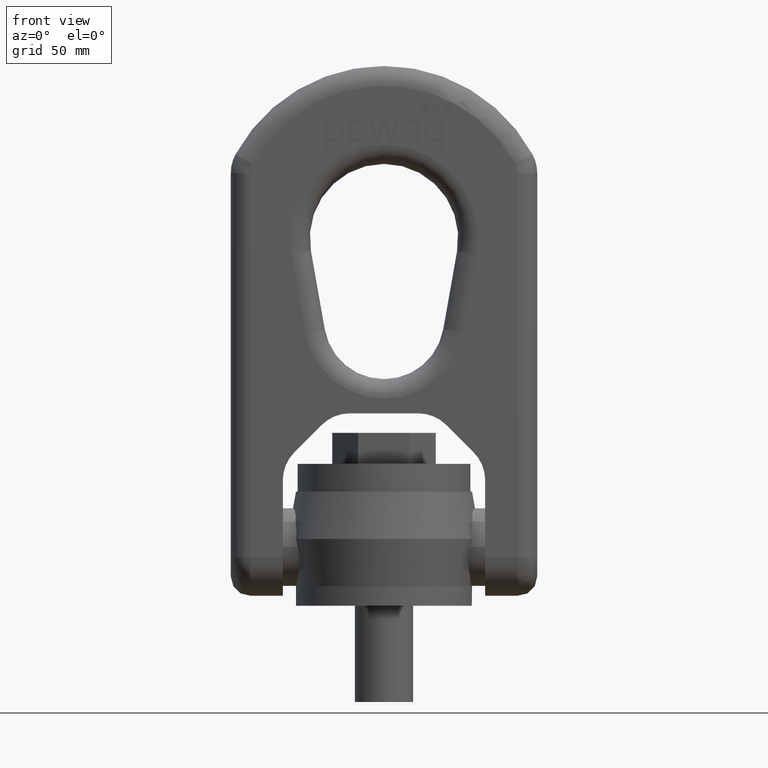
[diagram: clean part render]
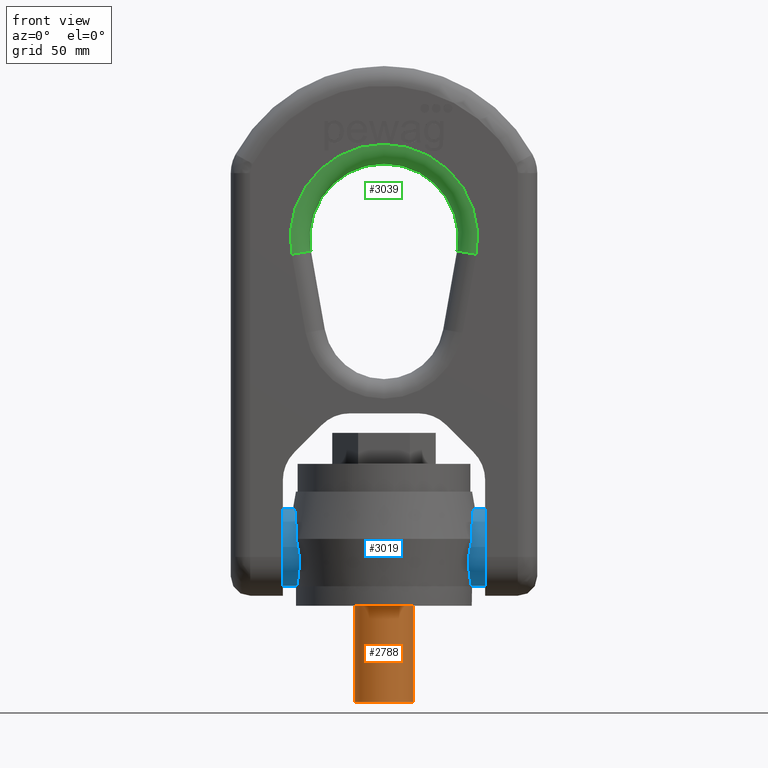
[diagram: same view with three faces highlighted in distinct colors, each labeled with its STEP entity id]
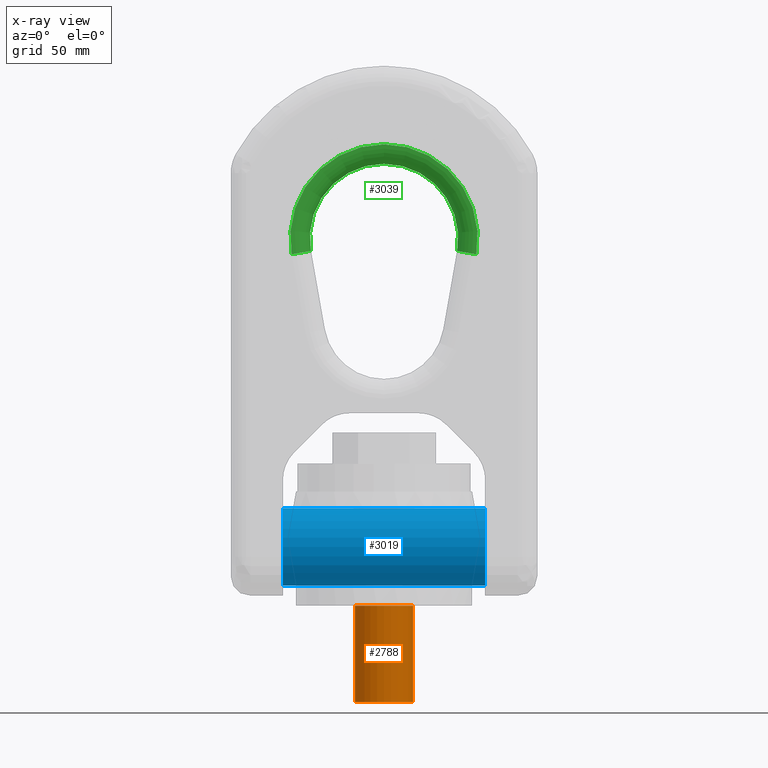
[diagram: x-ray of the same camera — body ghosted, the three highlighted faces saturated]
A machine part, front view with three faces highlighted in distinct colors.
The next image is the same camera in x-ray (body ghosted, the three faces saturated) — at least one of them is partly hidden behind the body in this view.
Their STEP definitions:

[orange] entity #2788 — the highlighted cylindrical surface (bore or boss wall) has radius 18 mm, axis along (0, 0, 1).
#2788=ADVANCED_FACE('',(#3073,#3074),#3041,.T.);
#3041=CYLINDRICAL_SURFACE('',#5834,18.);
#3073=FACE_BOUND('',#3141,.T.);
#3074=FACE_BOUND('',#3142,.T.);
#3141=EDGE_LOOP('',(#3437));
#3142=EDGE_LOOP('',(#3438));
#3437=ORIENTED_EDGE('',*,*,#5120,.F.);
#3438=ORIENTED_EDGE('',*,*,#5119,.T.);
#4699=VERTEX_POINT('',#6943);
#4700=VERTEX_POINT('',#6946);
#5119=EDGE_CURVE('',#4699,#4699,#5751,.T.);
#5120=EDGE_CURVE('',#4700,#4700,#5752,.T.);
#5751=CIRCLE('',#5831,18.);
#5752=CIRCLE('',#5833,18.);
#5831=AXIS2_PLACEMENT_3D('',#6942,#6072,#6073);
#5833=AXIS2_PLACEMENT_3D('',#6945,#6076,#6077);
#5834=AXIS2_PLACEMENT_3D('',#6947,#6078,#6079);
#6072=DIRECTION('',(0.,0.,-1.));
#6073=DIRECTION('',(-6.12323399573677E-17,1.,0.));
#6076=DIRECTION('',(0.,0.,-1.));
#6077=DIRECTION('',(-6.12323399573677E-17,1.,0.));
#6078=DIRECTION('',(0.,0.,1.));
#6079=DIRECTION('',(1.,0.,0.));
#6942=CARTESIAN_POINT('',(0.,0.,0.));
#6943=CARTESIAN_POINT('',(-1.10218211923262E-15,18.,0.));
#6945=CARTESIAN_POINT('',(0.,0.,-59.));
#6946=CARTESIAN_POINT('',(-1.10218211923262E-15,18.,-59.));
#6947=CARTESIAN_POINT('',(0.,0.,-59.));

[blue] entity #3019 — the highlighted cylindrical surface (bore or boss wall) has radius 24 mm, axis along (-1, 0, 0).
#3019=ADVANCED_FACE('',(#3135,#3136),#3060,.T.);
#3060=CYLINDRICAL_SURFACE('',#6029,24.);
#3135=FACE_BOUND('',#3411,.T.);
#3136=FACE_BOUND('',#3412,.T.);
#3411=EDGE_LOOP('',(#4613,#4614));
#3412=EDGE_LOOP('',(#4615,#4616));
#4613=ORIENTED_EDGE('',*,*,#5162,.F.);
#4614=ORIENTED_EDGE('',*,*,#5716,.F.);
#4615=ORIENTED_EDGE('',*,*,#5166,.F.);
#4616=ORIENTED_EDGE('',*,*,#5717,.F.);
#4729=VERTEX_POINT('',#7037);
#4731=VERTEX_POINT('',#7040);
#4733=VERTEX_POINT('',#7046);
#4735=VERTEX_POINT('',#7049);
#5162=EDGE_CURVE('',#4729,#4731,#5757,.T.);
#5166=EDGE_CURVE('',#4733,#4735,#5758,.T.);
#5716=EDGE_CURVE('',#4731,#4729,#5801,.T.);
#5717=EDGE_CURVE('',#4735,#4733,#5802,.T.);
#5757=CIRCLE('',#5859,24.);
#5758=CIRCLE('',#5861,24.);
#5801=CIRCLE('',#6012,24.);
#5802=CIRCLE('',#6014,24.);
#5859=AXIS2_PLACEMENT_3D('',#7039,#6165,#6166);
#5861=AXIS2_PLACEMENT_3D('',#7048,#6172,#6173);
#6012=AXIS2_PLACEMENT_3D('',#9690,#6825,#6826);
#6014=AXIS2_PLACEMENT_3D('',#9692,#6829,#6830);
#6029=AXIS2_PLACEMENT_3D('',#9714,#6866,#6867);
#6165=DIRECTION('',(-1.,0.,2.39272203583008E-16));
#6166=DIRECTION('',(-2.89120579329468E-16,0.,-1.));
#6172=DIRECTION('',(1.,0.,2.39272203583008E-16));
#6173=DIRECTION('',(-2.89120579329468E-16,0.,1.));
#6825=DIRECTION('',(-1.,0.,2.39272203583008E-16));
#6826=DIRECTION('',(-2.89120579329468E-16,0.,-1.));
#6829=DIRECTION('',(1.,0.,2.39272203583008E-16));
#6830=DIRECTION('',(-2.89120579329468E-16,0.,1.));
#6866=DIRECTION('',(-1.,0.,0.));
#6867=DIRECTION('',(0.,0.,1.));
#7037=CARTESIAN_POINT('',(-62.04,-24.,36.));
#7039=CARTESIAN_POINT('',(-62.04,0.,36.));
#7040=CARTESIAN_POINT('',(-62.04,24.0000000000001,36.));
#7046=CARTESIAN_POINT('',(62.04,-24.,36.));
#7048=CARTESIAN_POINT('',(62.04,0.,36.));
#7049=CARTESIAN_POINT('',(62.04,23.9999999999999,36.));
#9690=CARTESIAN_POINT('',(-62.04,0.,36.));
#9692=CARTESIAN_POINT('',(62.04,0.,36.));
#9714=CARTESIAN_POINT('',(94.,0.,36.));

[green] entity #3039 — the highlighted toroidal blend (fillet) surface has major radius 57.5 mm and minor (blend) radius 12 mm.
#206=TOROIDAL_SURFACE('',#6063,57.5,12.);
#2664=FACE_OUTER_BOUND('',#3432,.T.);
#3039=ADVANCED_FACE('',(#2664),#206,.T.);
#3432=EDGE_LOOP('',(#4693,#4694,#4695,#4696));
#4693=ORIENTED_EDGE('',*,*,#5747,.T.);
#4694=ORIENTED_EDGE('',*,*,#5356,.F.);
#4695=ORIENTED_EDGE('',*,*,#5748,.T.);
#4696=ORIENTED_EDGE('',*,*,#5177,.F.);
#4744=VERTEX_POINT('',#7071);
#4745=VERTEX_POINT('',#7073);
#4914=VERTEX_POINT('',#7727);
#4916=VERTEX_POINT('',#7733);
#5177=EDGE_CURVE('',#4744,#4745,#5763,.T.);
#5356=EDGE_CURVE('',#4916,#4914,#5788,.T.);
#5747=EDGE_CURVE('',#4744,#4914,#5825,.T.);
#5748=EDGE_CURVE('',#4916,#4745,#5826,.T.);
#5763=CIRCLE('',#5869,57.5);
#5788=CIRCLE('',#5897,45.5);
#5825=CIRCLE('',#6059,12.);
#5826=CIRCLE('',#6061,12.);
#5869=AXIS2_PLACEMENT_3D('',#7072,#6194,#6195);
#5897=AXIS2_PLACEMENT_3D('',#7734,#6336,#6337);
#6059=AXIS2_PLACEMENT_3D('',#9840,#6926,#6927);
#6061=AXIS2_PLACEMENT_3D('',#9842,#6930,#6931);
#6063=AXIS2_PLACEMENT_3D('',#9844,#6934,#6935);
#6194=DIRECTION('',(0.,1.,0.));
#6195=DIRECTION('',(0.,0.,-1.));
#6336=DIRECTION('',(0.,-1.,0.));
#6337=DIRECTION('',(0.,0.,-1.));
#6926=DIRECTION('',(-0.173648177666928,0.,0.984807753012208));
#6927=DIRECTION('',(0.984807753012208,0.,0.173648177666928));
#6930=DIRECTION('',(0.173648177666931,2.37823602808547E-15,0.984807753012208));
#6931=DIRECTION('',(0.984807753012208,0.,-0.173648177666931));
#6934=DIRECTION('',(0.,-1.,0.));
#6935=DIRECTION('',(0.,0.,-1.));
#7071=CARTESIAN_POINT('',(-56.626445798202,-24.,215.515229784152));
#7072=CARTESIAN_POINT('',(0.,-24.,225.5));
#7073=CARTESIAN_POINT('',(56.626445798202,-24.,215.515229784152));
#7727=CARTESIAN_POINT('',(-44.8087527620555,-12.,217.599007916155));
#7733=CARTESIAN_POINT('',(44.8087527620555,-12.,217.599007916155));
#7734=CARTESIAN_POINT('',(0.,-12.,225.5));
#9840=CARTESIAN_POINT('',(-56.626445798202,-12.,215.515229784152));
#9842=CARTESIAN_POINT('',(56.626445798202,-12.,215.515229784152));
#9844=CARTESIAN_POINT('',(0.,-12.,225.5));